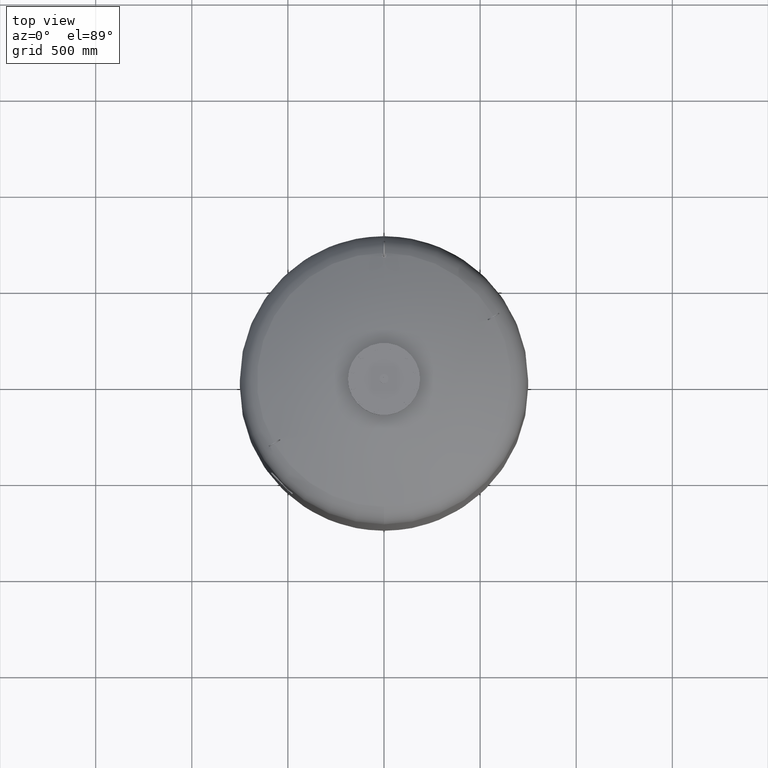
[diagram: clean part render]
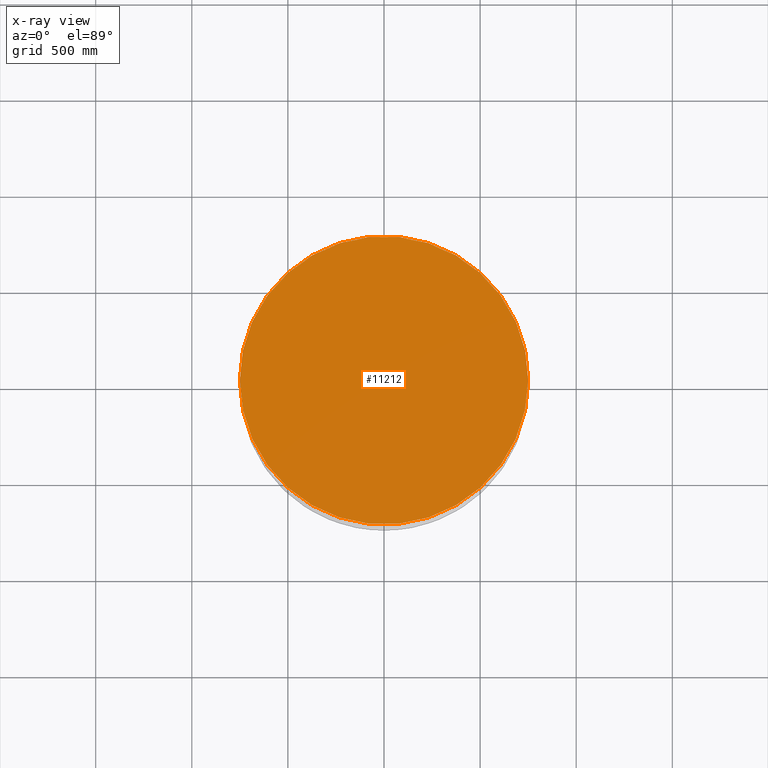
[diagram: x-ray — body ghosted, one internal face saturated and labeled with its STEP entity id]
A machine part, top view, then the same camera in x-ray: the body is ghosted and one INTERNAL B-rep face — a face not visible from any outside direction — is saturated and labeled: STEP entity #11212.
In plain terms, the highlighted planar face has unit normal (0, 0, 1).
Its self-contained STEP definition (entity closure, byte-faithful):
#11002=CARTESIAN_POINT('',(750.0,0.0,2645.0));
#11003=VERTEX_POINT('',#11002);
#11012=CARTESIAN_POINT('',(-750.0,-9.184548E-014,2645.0));
#11013=VERTEX_POINT('',#11012);
#11014=CARTESIAN_POINT('',(1.668796E-014,0.0,2645.0));
#11015=DIRECTION('',(0.0,0.0,1.0));
#11016=DIRECTION('',(1.0,0.0,0.0));
#11017=AXIS2_PLACEMENT_3D('',#11014,#11015,#11016);
#11018=CIRCLE('',#11017,750.0);
#11019=EDGE_CURVE('',#11013,#11003,#11018,.T.);
#11193=CARTESIAN_POINT('',(1.668796E-014,0.0,2645.0));
#11194=DIRECTION('',(0.0,0.0,1.0));
#11195=DIRECTION('',(1.0,0.0,0.0));
#11196=AXIS2_PLACEMENT_3D('',#11193,#11194,#11195);
#11197=CIRCLE('',#11196,750.0);
#11198=EDGE_CURVE('',#11003,#11013,#11197,.T.);
#11203=CARTESIAN_POINT('',(375.0,0.0,2645.0));
#11204=DIRECTION('',(0.0,0.0,1.0));
#11205=DIRECTION('',(1.0,0.0,0.0));
#11206=AXIS2_PLACEMENT_3D('',#11203,#11204,#11205);
#11207=PLANE('',#11206);
#11208=ORIENTED_EDGE('',*,*,#11198,.T.);
#11209=ORIENTED_EDGE('',*,*,#11019,.T.);
#11210=EDGE_LOOP('',(#11208,#11209));
#11211=FACE_OUTER_BOUND('',#11210,.T.);
#11212=ADVANCED_FACE('',(#11211),#11207,.T.);